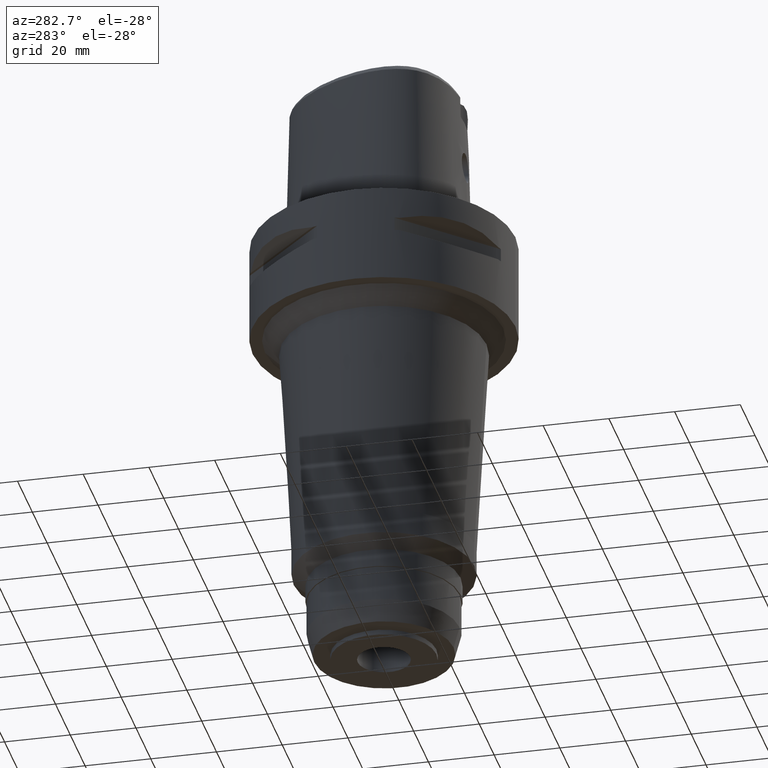
[diagram: clean part render]
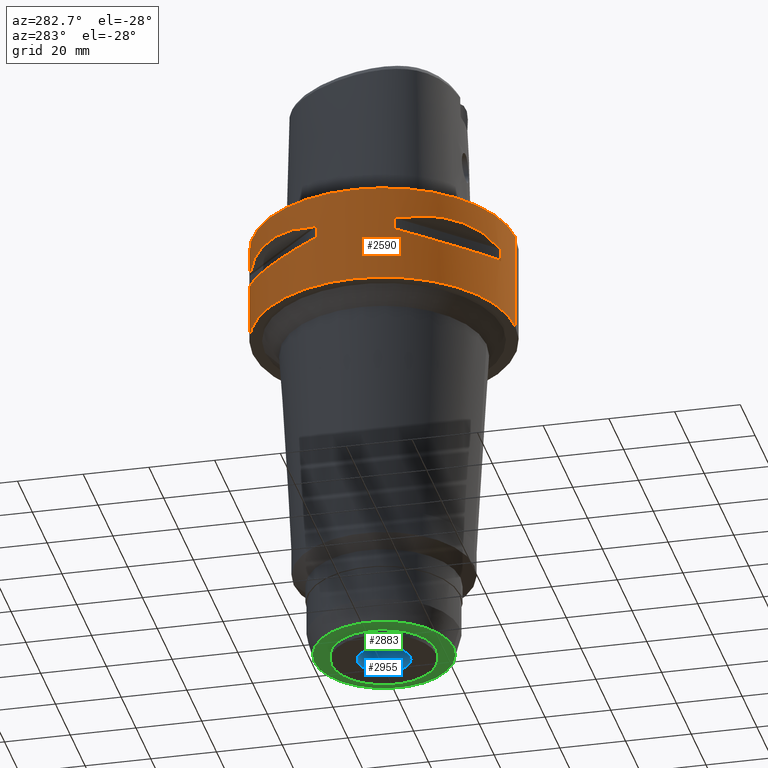
[diagram: same view with three faces highlighted in distinct colors, each labeled with its STEP entity id]
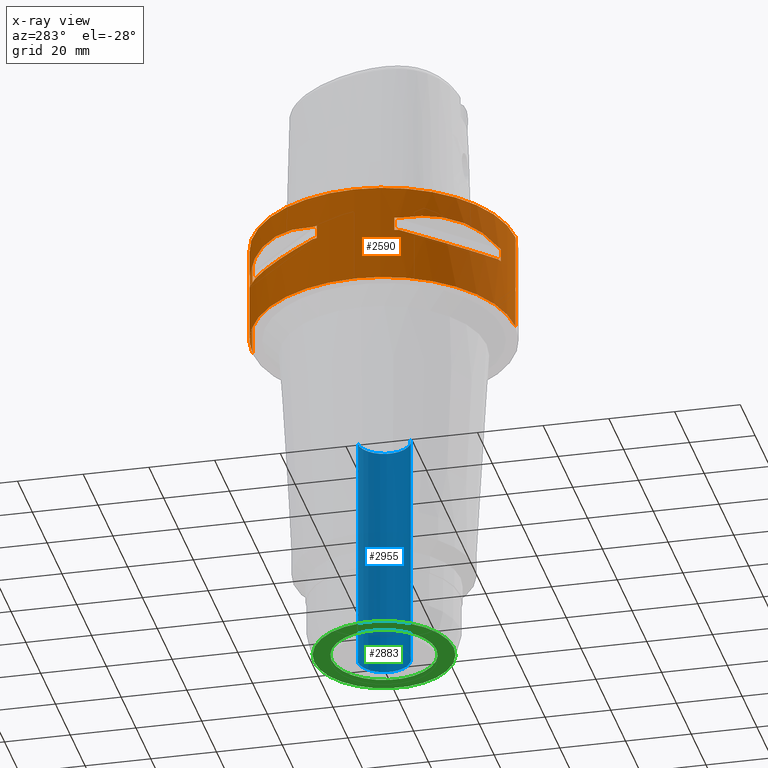
[diagram: x-ray of the same camera — body ghosted, the three highlighted faces saturated]
A machine part, auxiliary view with three faces highlighted in distinct colors.
The next image is the same camera in x-ray (body ghosted, the three faces saturated) — at least one of them is partly hidden behind the body in this view.
Their STEP definitions:

[orange] entity #2590 — the highlighted cylindrical surface (partial cylindrical patch) has radius 40 mm, axis along (0, 0, -1).
#284=CARTESIAN_POINT('',(0.E0,1.308780034249E-14,0.E0));
#285=DIRECTION('',(0.E0,0.E0,-1.E0));
#286=DIRECTION('',(0.E0,-1.E0,0.E0));
#287=AXIS2_PLACEMENT_3D('',#284,#285,#286);
#384=DIRECTION('',(0.E0,0.E0,-1.E0));
#385=VECTOR('',#384,3.E1);
#386=CARTESIAN_POINT('',(0.E0,-4.E1,0.E0));
#387=LINE('',#386,#385);
#391=CARTESIAN_POINT('',(-3.774622163927E1,1.323717311056E1,-9.950000000002E0));
#392=CARTESIAN_POINT('',(-3.668564587161E1,1.626143876435E1,-9.148326960991E0));
#393=CARTESIAN_POINT('',(-3.397359084062E1,2.171906657626E1,-8.027451566833E0));
#394=CARTESIAN_POINT('',(-2.850324251697E1,2.850324251697E1,-7.491083688204E0));
#395=CARTESIAN_POINT('',(-2.171906657626E1,3.397359084062E1,-8.027451566833E0));
#396=CARTESIAN_POINT('',(-1.626143876435E1,3.668564587161E1,-9.148326960991E0));
#397=CARTESIAN_POINT('',(-1.323717311056E1,3.774622163927E1,-9.950000000002E0));
#402=DIRECTION('',(0.E0,0.E0,-1.E0));
#403=VECTOR('',#402,4.1E0);
#404=CARTESIAN_POINT('',(-1.176033600281E1,3.823211342708E1,-9.95E0));
#405=LINE('',#404,#403);
#409=CARTESIAN_POINT('',(-1.323717311056E1,3.774622163927E1,-1.405E1));
#410=CARTESIAN_POINT('',(-1.626143876435E1,3.668564587161E1,-1.485167303901E1));
#411=CARTESIAN_POINT('',(-2.171906657626E1,3.397359084062E1,-1.597254843317E1));
#412=CARTESIAN_POINT('',(-2.850324251697E1,2.850324251697E1,-1.650891631180E1));
#413=CARTESIAN_POINT('',(-3.397359084062E1,2.171906657626E1,-1.597254843317E1));
#414=CARTESIAN_POINT('',(-3.668564587161E1,1.626143876435E1,-1.485167303901E1));
#415=CARTESIAN_POINT('',(-3.774622163927E1,1.323717311056E1,-1.405E1));
#420=DIRECTION('',(0.E0,0.E0,1.E0));
#421=VECTOR('',#420,4.1E0);
#422=CARTESIAN_POINT('',(-3.823211342708E1,1.176033600281E1,-1.405E1));
#423=LINE('',#422,#421);
#427=CARTESIAN_POINT('',(-1.323717311056E1,-3.774622163927E1,
-9.950000000002E0));
#428=CARTESIAN_POINT('',(-1.626143876435E1,-3.668564587161E1,
-9.148326960991E0));
#429=CARTESIAN_POINT('',(-2.171906657626E1,-3.397359084062E1,
-8.027451566833E0));
#430=CARTESIAN_POINT('',(-2.850324251697E1,-2.850324251697E1,
-7.491083688204E0));
#431=CARTESIAN_POINT('',(-3.397359084062E1,-2.171906657626E1,
-8.027451566833E0));
#432=CARTESIAN_POINT('',(-3.668564587161E1,-1.626143876435E1,
-9.148326960991E0));
#433=CARTESIAN_POINT('',(-3.774622163927E1,-1.323717311056E1,
-9.950000000002E0));
#438=DIRECTION('',(0.E0,0.E0,-1.E0));
#439=VECTOR('',#438,4.1E0);
#440=CARTESIAN_POINT('',(-3.823211342708E1,-1.176033600281E1,-9.95E0));
#441=LINE('',#440,#439);
#445=CARTESIAN_POINT('',(-3.774622163927E1,-1.323717311056E1,-1.405E1));
#446=CARTESIAN_POINT('',(-3.668564587161E1,-1.626143876435E1,
-1.485167303901E1));
#447=CARTESIAN_POINT('',(-3.397359084062E1,-2.171906657626E1,
-1.597254843317E1));
#448=CARTESIAN_POINT('',(-2.850324251697E1,-2.850324251697E1,
-1.650891631180E1));
#449=CARTESIAN_POINT('',(-2.171906657626E1,-3.397359084062E1,
-1.597254843317E1));
#450=CARTESIAN_POINT('',(-1.626143876435E1,-3.668564587161E1,
-1.485167303901E1));
#451=CARTESIAN_POINT('',(-1.323717311056E1,-3.774622163927E1,-1.405E1));
#456=DIRECTION('',(0.E0,0.E0,1.E0));
#457=VECTOR('',#456,4.1E0);
#458=CARTESIAN_POINT('',(-1.176033600281E1,-3.823211342708E1,-1.405E1));
#459=LINE('',#458,#457);
#463=DIRECTION('',(0.E0,0.E0,-1.E0));
#464=VECTOR('',#463,3.E1);
#465=CARTESIAN_POINT('',(0.E0,4.E1,0.E0));
#466=LINE('',#465,#464);
#550=CARTESIAN_POINT('',(0.E0,1.308780034249E-14,-3.E1));
#551=DIRECTION('',(0.E0,0.E0,1.E0));
#552=DIRECTION('',(0.E0,1.E0,0.E0));
#553=AXIS2_PLACEMENT_3D('',#550,#551,#552);
#1484=CARTESIAN_POINT('',(0.E0,1.308780034249E-14,-9.95E0));
#1485=DIRECTION('',(0.E0,0.E0,1.E0));
#1486=DIRECTION('',(-9.436555409818E-1,3.309293277639E-1,0.E0));
#1487=AXIS2_PLACEMENT_3D('',#1484,#1485,#1486);
#1492=CARTESIAN_POINT('',(0.E0,1.308780034249E-14,-9.95E0));
#1493=DIRECTION('',(0.E0,0.E0,1.E0));
#1494=DIRECTION('',(-2.940084000703E-1,9.558028356770E-1,0.E0));
#1495=AXIS2_PLACEMENT_3D('',#1492,#1493,#1494);
#1514=CARTESIAN_POINT('',(0.E0,1.308780034249E-14,-1.405E1));
#1515=DIRECTION('',(0.E0,0.E0,-1.E0));
#1516=DIRECTION('',(-9.558028356770E-1,2.940084000703E-1,0.E0));
#1517=AXIS2_PLACEMENT_3D('',#1514,#1515,#1516);
#1522=CARTESIAN_POINT('',(0.E0,1.308780034249E-14,-1.405E1));
#1523=DIRECTION('',(0.E0,0.E0,-1.E0));
#1524=DIRECTION('',(-3.309293277639E-1,9.436555409818E-1,0.E0));
#1525=AXIS2_PLACEMENT_3D('',#1522,#1523,#1524);
#1544=CARTESIAN_POINT('',(0.E0,1.308780034249E-14,-9.95E0));
#1545=DIRECTION('',(0.E0,0.E0,1.E0));
#1546=DIRECTION('',(-3.309293277639E-1,-9.436555409818E-1,0.E0));
#1547=AXIS2_PLACEMENT_3D('',#1544,#1545,#1546);
#1552=CARTESIAN_POINT('',(0.E0,1.308780034249E-14,-9.95E0));
#1553=DIRECTION('',(0.E0,0.E0,1.E0));
#1554=DIRECTION('',(-9.558028356770E-1,-2.940084000703E-1,0.E0));
#1555=AXIS2_PLACEMENT_3D('',#1552,#1553,#1554);
#1574=CARTESIAN_POINT('',(0.E0,1.308780034249E-14,-1.405E1));
#1575=DIRECTION('',(0.E0,0.E0,-1.E0));
#1576=DIRECTION('',(-2.940084000703E-1,-9.558028356770E-1,0.E0));
#1577=AXIS2_PLACEMENT_3D('',#1574,#1575,#1576);
#1582=CARTESIAN_POINT('',(0.E0,1.308780034249E-14,-1.405E1));
#1583=DIRECTION('',(0.E0,0.E0,-1.E0));
#1584=DIRECTION('',(-9.436555409818E-1,-3.309293277639E-1,0.E0));
#1585=AXIS2_PLACEMENT_3D('',#1582,#1583,#1584);
#1626=CARTESIAN_POINT('',(0.E0,-4.E1,0.E0));
#1627=CARTESIAN_POINT('',(0.E0,4.E1,0.E0));
#1628=VERTEX_POINT('',#1626);
#1629=VERTEX_POINT('',#1627);
#1630=CARTESIAN_POINT('',(0.E0,4.E1,-3.E1));
#1631=VERTEX_POINT('',#1630);
#1632=CARTESIAN_POINT('',(0.E0,-4.E1,-3.E1));
#1633=VERTEX_POINT('',#1632);
#1634=VERTEX_POINT('',#391);
#1635=VERTEX_POINT('',#397);
#1636=CARTESIAN_POINT('',(-1.176033600281E1,3.823211342708E1,-9.95E0));
#1637=VERTEX_POINT('',#1636);
#1638=CARTESIAN_POINT('',(-1.176033600281E1,3.823211342708E1,-1.405E1));
#1639=VERTEX_POINT('',#1638);
#1640=CARTESIAN_POINT('',(-1.323717311056E1,3.774622163927E1,-1.405E1));
#1641=VERTEX_POINT('',#1640);
#1642=VERTEX_POINT('',#415);
#1643=CARTESIAN_POINT('',(-3.823211342708E1,1.176033600281E1,-1.405E1));
#1644=VERTEX_POINT('',#1643);
#1645=CARTESIAN_POINT('',(-3.823211342708E1,1.176033600281E1,-9.95E0));
#1646=VERTEX_POINT('',#1645);
#1647=VERTEX_POINT('',#427);
#1648=VERTEX_POINT('',#433);
#1649=CARTESIAN_POINT('',(-3.823211342708E1,-1.176033600281E1,-9.95E0));
#1650=VERTEX_POINT('',#1649);
#1651=CARTESIAN_POINT('',(-3.823211342708E1,-1.176033600281E1,-1.405E1));
#1652=VERTEX_POINT('',#1651);
#1653=CARTESIAN_POINT('',(-3.774622163927E1,-1.323717311056E1,-1.405E1));
#1654=VERTEX_POINT('',#1653);
#1655=VERTEX_POINT('',#451);
#1656=CARTESIAN_POINT('',(-1.176033600281E1,-3.823211342708E1,-1.405E1));
#1657=VERTEX_POINT('',#1656);
#1658=CARTESIAN_POINT('',(-1.176033600281E1,-3.823211342708E1,-9.95E0));
#1659=VERTEX_POINT('',#1658);
#2540=CARTESIAN_POINT('',(0.E0,1.308780034249E-14,6.87E0));
#2541=DIRECTION('',(0.E0,0.E0,-1.E0));
#2542=DIRECTION('',(0.E0,-1.E0,0.E0));
#2543=AXIS2_PLACEMENT_3D('',#2540,#2541,#2542);
#2544=CYLINDRICAL_SURFACE('',#2543,4.E1);
#2546=ORIENTED_EDGE('',*,*,#2545,.F.);
#2547=ORIENTED_EDGE('',*,*,#2528,.F.);
#2549=ORIENTED_EDGE('',*,*,#2548,.T.);
#2551=ORIENTED_EDGE('',*,*,#2550,.F.);
#2552=EDGE_LOOP('',(#2546,#2547,#2549,#2551));
#2553=FACE_OUTER_BOUND('',#2552,.F.);
#2555=ORIENTED_EDGE('',*,*,#2554,.T.);
#2557=ORIENTED_EDGE('',*,*,#2556,.F.);
#2559=ORIENTED_EDGE('',*,*,#2558,.T.);
#2561=ORIENTED_EDGE('',*,*,#2560,.F.);
#2563=ORIENTED_EDGE('',*,*,#2562,.T.);
#2565=ORIENTED_EDGE('',*,*,#2564,.F.);
#2567=ORIENTED_EDGE('',*,*,#2566,.T.);
#2569=ORIENTED_EDGE('',*,*,#2568,.F.);
#2570=EDGE_LOOP('',(#2555,#2557,#2559,#2561,#2563,#2565,#2567,#2569));
#2571=FACE_BOUND('',#2570,.F.);
#2573=ORIENTED_EDGE('',*,*,#2572,.T.);
#2575=ORIENTED_EDGE('',*,*,#2574,.F.);
#2577=ORIENTED_EDGE('',*,*,#2576,.T.);
#2579=ORIENTED_EDGE('',*,*,#2578,.F.);
#2581=ORIENTED_EDGE('',*,*,#2580,.T.);
#2583=ORIENTED_EDGE('',*,*,#2582,.F.);
#2585=ORIENTED_EDGE('',*,*,#2584,.T.);
#2587=ORIENTED_EDGE('',*,*,#2586,.F.);
#2588=EDGE_LOOP('',(#2573,#2575,#2577,#2579,#2581,#2583,#2585,#2587));
#2589=FACE_BOUND('',#2588,.F.);
#288=CIRCLE('',#287,4.E1);
#398=B_SPLINE_CURVE_WITH_KNOTS('',3,(#391,#392,#393,#394,#395,#396,#397),
.UNSPECIFIED.,.F.,.F.,(4,1,1,1,4),(0.E0,2.5E-1,5.E-1,7.5E-1,1.E0),
.UNSPECIFIED.);
#416=B_SPLINE_CURVE_WITH_KNOTS('',3,(#409,#410,#411,#412,#413,#414,#415),
.UNSPECIFIED.,.F.,.F.,(4,1,1,1,4),(0.E0,2.5E-1,5.E-1,7.5E-1,1.E0),
.UNSPECIFIED.);
#434=B_SPLINE_CURVE_WITH_KNOTS('',3,(#427,#428,#429,#430,#431,#432,#433),
.UNSPECIFIED.,.F.,.F.,(4,1,1,1,4),(0.E0,2.5E-1,5.E-1,7.5E-1,1.E0),
.UNSPECIFIED.);
#452=B_SPLINE_CURVE_WITH_KNOTS('',3,(#445,#446,#447,#448,#449,#450,#451),
.UNSPECIFIED.,.F.,.F.,(4,1,1,1,4),(0.E0,2.5E-1,5.E-1,7.5E-1,1.E0),
.UNSPECIFIED.);
#554=CIRCLE('',#553,4.E1);
#1488=CIRCLE('',#1487,4.E1);
#1496=CIRCLE('',#1495,4.E1);
#1518=CIRCLE('',#1517,4.E1);
#1526=CIRCLE('',#1525,4.E1);
#1548=CIRCLE('',#1547,4.E1);
#1556=CIRCLE('',#1555,4.E1);
#1578=CIRCLE('',#1577,4.E1);
#1586=CIRCLE('',#1585,4.E1);
#2528=EDGE_CURVE('',#1628,#1629,#288,.T.);
#2545=EDGE_CURVE('',#1629,#1631,#466,.T.);
#2548=EDGE_CURVE('',#1628,#1633,#387,.T.);
#2550=EDGE_CURVE('',#1631,#1633,#554,.T.);
#2554=EDGE_CURVE('',#1634,#1635,#398,.T.);
#2556=EDGE_CURVE('',#1637,#1635,#1496,.T.);
#2558=EDGE_CURVE('',#1637,#1639,#405,.T.);
#2560=EDGE_CURVE('',#1641,#1639,#1526,.T.);
#2562=EDGE_CURVE('',#1641,#1642,#416,.T.);
#2564=EDGE_CURVE('',#1644,#1642,#1518,.T.);
#2566=EDGE_CURVE('',#1644,#1646,#423,.T.);
#2568=EDGE_CURVE('',#1634,#1646,#1488,.T.);
#2572=EDGE_CURVE('',#1647,#1648,#434,.T.);
#2574=EDGE_CURVE('',#1650,#1648,#1556,.T.);
#2576=EDGE_CURVE('',#1650,#1652,#441,.T.);
#2578=EDGE_CURVE('',#1654,#1652,#1586,.T.);
#2580=EDGE_CURVE('',#1654,#1655,#452,.T.);
#2582=EDGE_CURVE('',#1657,#1655,#1578,.T.);
#2584=EDGE_CURVE('',#1657,#1659,#459,.T.);
#2586=EDGE_CURVE('',#1647,#1659,#1548,.T.);
#2590=ADVANCED_FACE('',(#2553,#2571,#2589),#2544,.T.);

[blue] entity #2955 — the highlighted cylindrical surface (edge-blend (fillet) strip) has radius 8 mm, axis along (0, 0, -1).
#854=CARTESIAN_POINT('',(0.E0,1.308780034249E-14,-1.374E2));
#855=DIRECTION('',(0.E0,0.E0,-1.E0));
#856=DIRECTION('',(0.E0,1.E0,0.E0));
#857=AXIS2_PLACEMENT_3D('',#854,#855,#856);
#862=DIRECTION('',(0.E0,0.E0,1.E0));
#863=VECTOR('',#862,7.34E1);
#864=CARTESIAN_POINT('',(0.E0,-8.E0,-1.374E2));
#865=LINE('',#864,#863);
#869=DIRECTION('',(0.E0,0.E0,1.E0));
#870=VECTOR('',#869,7.34E1);
#871=CARTESIAN_POINT('',(0.E0,8.E0,-1.374E2));
#872=LINE('',#871,#870);
#876=CARTESIAN_POINT('',(0.E0,1.308780034249E-14,-6.4E1));
#877=DIRECTION('',(0.E0,0.E0,1.E0));
#878=DIRECTION('',(0.E0,-1.E0,0.E0));
#879=AXIS2_PLACEMENT_3D('',#876,#877,#878);
#1730=CARTESIAN_POINT('',(0.E0,-8.E0,-1.374E2));
#1731=CARTESIAN_POINT('',(0.E0,8.E0,-1.374E2));
#1732=VERTEX_POINT('',#1730);
#1733=VERTEX_POINT('',#1731);
#1734=CARTESIAN_POINT('',(0.E0,8.E0,-6.4E1));
#1735=VERTEX_POINT('',#1734);
#1736=CARTESIAN_POINT('',(0.E0,-8.E0,-6.4E1));
#1737=VERTEX_POINT('',#1736);
#2943=CARTESIAN_POINT('',(0.E0,1.308780034249E-14,6.87E0));
#2944=DIRECTION('',(0.E0,0.E0,-1.E0));
#2945=DIRECTION('',(0.E0,-1.E0,0.E0));
#2946=AXIS2_PLACEMENT_3D('',#2943,#2944,#2945);
#2947=CYLINDRICAL_SURFACE('',#2946,8.E0);
#2948=ORIENTED_EDGE('',*,*,#2933,.T.);
#2950=ORIENTED_EDGE('',*,*,#2949,.F.);
#2951=ORIENTED_EDGE('',*,*,#2936,.F.);
#2952=ORIENTED_EDGE('',*,*,#2923,.F.);
#2953=EDGE_LOOP('',(#2948,#2950,#2951,#2952));
#2954=FACE_OUTER_BOUND('',#2953,.F.);
#858=CIRCLE('',#857,8.E0);
#880=CIRCLE('',#879,8.E0);
#2923=EDGE_CURVE('',#1733,#1732,#858,.T.);
#2933=EDGE_CURVE('',#1733,#1735,#872,.T.);
#2936=EDGE_CURVE('',#1732,#1737,#865,.T.);
#2949=EDGE_CURVE('',#1737,#1735,#880,.T.);
#2955=ADVANCED_FACE('',(#2954),#2947,.F.);

[green] entity #2883 — the highlighted planar face has unit normal (0, 0, -1).
#784=CARTESIAN_POINT('',(0.E0,0.E0,-1.358E2));
#785=DIRECTION('',(0.E0,0.E0,1.E0));
#786=DIRECTION('',(0.E0,-1.E0,0.E0));
#787=AXIS2_PLACEMENT_3D('',#784,#785,#786);
#792=CARTESIAN_POINT('',(0.E0,0.E0,-1.358E2));
#793=DIRECTION('',(0.E0,0.E0,1.E0));
#794=DIRECTION('',(0.E0,1.E0,0.E0));
#795=AXIS2_PLACEMENT_3D('',#792,#793,#794);
#800=CARTESIAN_POINT('',(0.E0,1.308780034249E-14,-1.358E2));
#801=DIRECTION('',(0.E0,0.E0,-1.E0));
#802=DIRECTION('',(0.E0,-1.E0,0.E0));
#803=AXIS2_PLACEMENT_3D('',#800,#801,#802);
#808=CARTESIAN_POINT('',(0.E0,1.308780034249E-14,-1.358E2));
#809=DIRECTION('',(0.E0,0.E0,-1.E0));
#810=DIRECTION('',(0.E0,1.E0,0.E0));
#811=AXIS2_PLACEMENT_3D('',#808,#809,#810);
#1718=CARTESIAN_POINT('',(0.E0,2.123153532995E1,-1.358E2));
#1719=VERTEX_POINT('',#1718);
#1720=CARTESIAN_POINT('',(0.E0,-2.123153532996E1,-1.358E2));
#1721=VERTEX_POINT('',#1720);
#1722=CARTESIAN_POINT('',(0.E0,-1.595E1,-1.358E2));
#1723=CARTESIAN_POINT('',(0.E0,1.595E1,-1.358E2));
#1724=VERTEX_POINT('',#1722);
#1725=VERTEX_POINT('',#1723);
#2868=CARTESIAN_POINT('',(0.E0,0.E0,-1.358E2));
#2869=DIRECTION('',(0.E0,0.E0,-1.E0));
#2870=DIRECTION('',(0.E0,-1.E0,0.E0));
#2871=AXIS2_PLACEMENT_3D('',#2868,#2869,#2870);
#2872=PLANE('',#2871);
#2873=ORIENTED_EDGE('',*,*,#2847,.T.);
#2874=ORIENTED_EDGE('',*,*,#2863,.T.);
#2875=EDGE_LOOP('',(#2873,#2874));
#2876=FACE_OUTER_BOUND('',#2875,.F.);
#2878=ORIENTED_EDGE('',*,*,#2877,.T.);
#2880=ORIENTED_EDGE('',*,*,#2879,.T.);
#2881=EDGE_LOOP('',(#2878,#2880));
#2882=FACE_BOUND('',#2881,.F.);
#788=CIRCLE('',#787,2.123153532996E1);
#796=CIRCLE('',#795,2.123153532996E1);
#804=CIRCLE('',#803,1.595E1);
#812=CIRCLE('',#811,1.595E1);
#2847=EDGE_CURVE('',#1721,#1719,#788,.T.);
#2863=EDGE_CURVE('',#1719,#1721,#796,.T.);
#2877=EDGE_CURVE('',#1724,#1725,#804,.T.);
#2879=EDGE_CURVE('',#1725,#1724,#812,.T.);
#2883=ADVANCED_FACE('',(#2876,#2882),#2872,.T.);